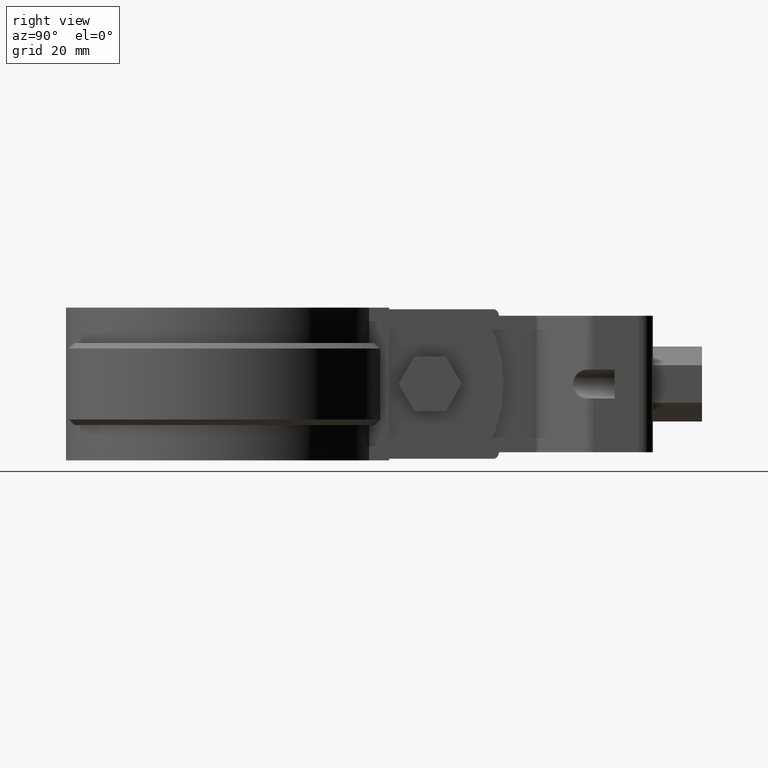
[diagram: clean part render]
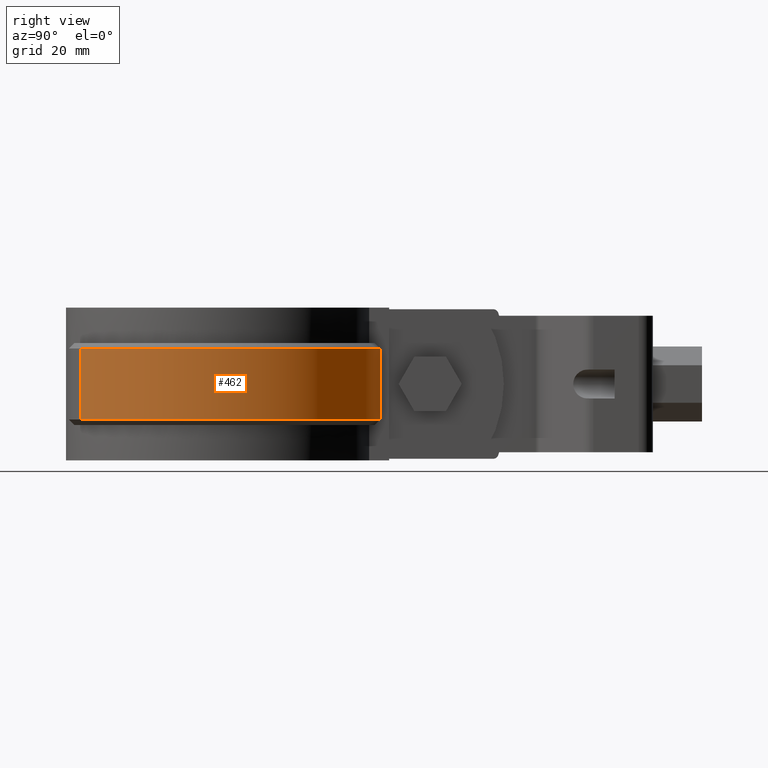
[diagram: same view with one face highlighted and labeled with its STEP entity id]
A machine part, right view. The second image highlights one B-rep face of the part: STEP entity #462.
In plain terms, the highlighted cylindrical surface (partial cylindrical patch) has radius 30.095 mm, axis along (0, 0, 1).
Its self-contained STEP definition (entity closure, byte-faithful):
#462 = ADVANCED_FACE( '', ( #917 ), #918, .T. );
#917 = FACE_OUTER_BOUND( '', #2183, .T. );
#918 = CYLINDRICAL_SURFACE( '', #2184, 30.0950000000000 );
#2183 = EDGE_LOOP( '', ( #4714, #4715, #4716, #4717 ) );
#2184 = AXIS2_PLACEMENT_3D( '', #4718, #4719, #4720 );
#4714 = ORIENTED_EDGE( '', *, *, #7507, .T. );
#4715 = ORIENTED_EDGE( '', *, *, #7508, .T. );
#4716 = ORIENTED_EDGE( '', *, *, #7509, .F. );
#4717 = ORIENTED_EDGE( '', *, *, #7510, .T. );
#4718 = CARTESIAN_POINT( '', ( 8.67361737988404E-016, 0.000000000000000, -20.0000000000000 ) );
#4719 = DIRECTION( '', ( 0.000000000000000, 0.000000000000000, 1.00000000000000 ) );
#4720 = DIRECTION( '', ( 0.190592010331802, 0.981669336180815, 0.000000000000000 ) );
#7507 = EDGE_CURVE( '', #8738, #8739, #8740, .F. );
#7508 = EDGE_CURVE( '', #8739, #8741, #8742, .T. );
#7509 = EDGE_CURVE( '', #8743, #8741, #8744, .T. );
#7510 = EDGE_CURVE( '', #8743, #8738, #8745, .T. );
#8738 = VERTEX_POINT( '', #12069 );
#8739 = VERTEX_POINT( '', #12070 );
#8740 = LINE( '', #12071, #12072 );
#8741 = VERTEX_POINT( '', #12073 );
#8742 = CIRCLE( '', #12074, 30.0950000000000 );
#8743 = VERTEX_POINT( '', #12075 );
#8744 = LINE( '', #12076, #12077 );
#8745 = CIRCLE( '', #12078, 30.0950000000000 );
#12069 = CARTESIAN_POINT( '', ( 6.10000000000001, 29.4703075145136, -19.0000000000000 ) );
#12070 = CARTESIAN_POINT( '', ( 6.10000000000001, 29.4703075145136, -6.00000000000000 ) );
#12071 = CARTESIAN_POINT( '', ( 6.10000000000001, 29.4703075145136, -20.0000000000000 ) );
#12072 = VECTOR( '', #14043, 1000.00000000000 );
#12073 = CARTESIAN_POINT( '', ( 15.9728671526465, -25.5064019399818, -6.00000000000000 ) );
#12074 = AXIS2_PLACEMENT_3D( '', #14044, #14045, #14046 );
#12075 = CARTESIAN_POINT( '', ( 15.9728671526465, -25.5064019399818, -19.0000000000000 ) );
#12076 = CARTESIAN_POINT( '', ( 15.9728671526464, -25.5064019399818, -20.0000000000000 ) );
#12077 = VECTOR( '', #14047, 1000.00000000000 );
#12078 = AXIS2_PLACEMENT_3D( '', #14048, #14049, #14050 );
#14043 = DIRECTION( '', ( 0.000000000000000, 0.000000000000000, -1.00000000000000 ) );
#14044 = CARTESIAN_POINT( '', ( 8.67361737988404E-016, 0.000000000000000, -6.00000000000000 ) );
#14045 = DIRECTION( '', ( 0.000000000000000, 0.000000000000000, -1.00000000000000 ) );
#14046 = DIRECTION( '', ( -1.00000000000000, 0.000000000000000, 0.000000000000000 ) );
#14047 = DIRECTION( '', ( 0.000000000000000, 0.000000000000000, 1.00000000000000 ) );
#14048 = CARTESIAN_POINT( '', ( 8.67361737988404E-016, 0.000000000000000, -19.0000000000000 ) );
#14049 = DIRECTION( '', ( 0.000000000000000, 0.000000000000000, 1.00000000000000 ) );
#14050 = DIRECTION( '', ( 1.00000000000000, 0.000000000000000, 0.000000000000000 ) );